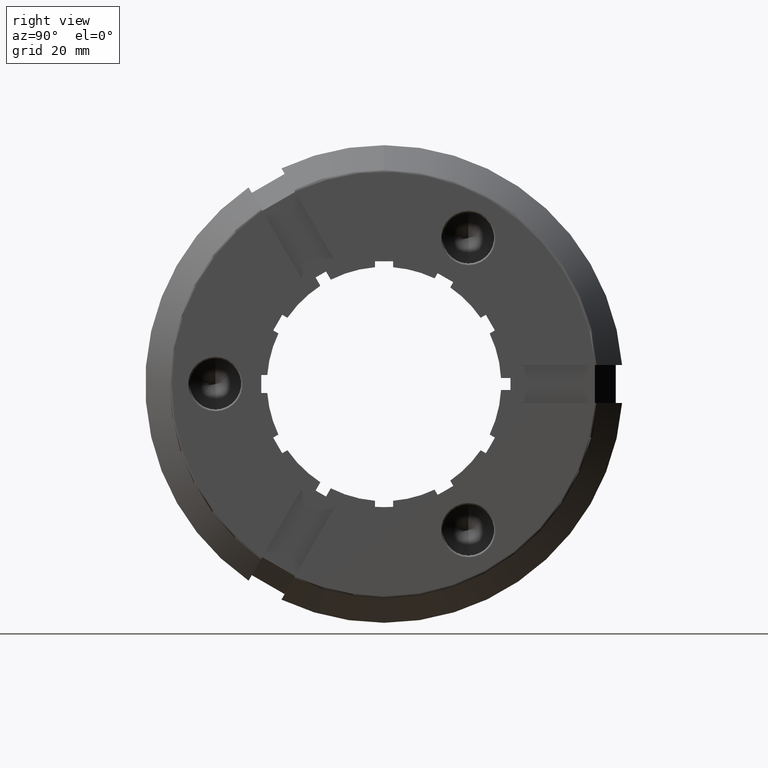
[diagram: clean part render]
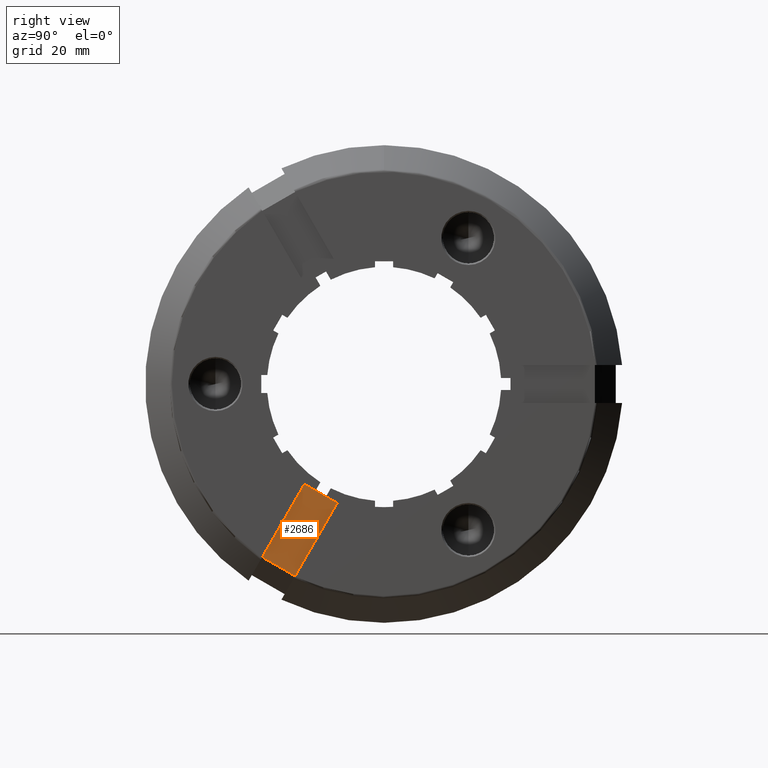
[diagram: same view with one face highlighted and labeled with its STEP entity id]
A machine part, right view. The second image highlights one B-rep face of the part: STEP entity #2686.
In plain terms, the highlighted planar face has unit normal (1, -0, -0).
Its self-contained STEP definition (entity closure, byte-faithful):
#143 = VERTEX_POINT ( 'NONE', #11821 ) ;
#159 = VERTEX_POINT ( 'NONE', #12457 ) ;
#350 = EDGE_LOOP ( 'NONE', ( #19426, #10072, #4352, #11635 ) ) ;
#1547 = PLANE ( 'NONE',  #18583 ) ;
#1912 = LINE ( 'NONE', #18557, #17241 ) ;
#2513 = VERTEX_POINT ( 'NONE', #18452 ) ;
#2686 = ADVANCED_FACE ( 'NONE', ( #17269 ), #1547, .T. ) ;
#3345 = VECTOR ( 'NONE', #14757, 1000.000000000000200 ) ;
#3620 = VECTOR ( 'NONE', #9028, 1000.000000000000000 ) ;
#4352 = ORIENTED_EDGE ( 'NONE', *, *, #9973, .T. ) ;
#9028 = DIRECTION ( 'NONE',  ( -3.252606517456512800E-016, -0.4999999999999920100, -0.8660254037844432600 ) ) ;
#9317 = VERTEX_POINT ( 'NONE', #14268 ) ;
#9435 = EDGE_CURVE ( 'NONE', #143, #159, #11745, .T. ) ;
#9602 = CARTESIAN_POINT ( 'NONE',  ( -1.000000000000000900, -13.22798002192083000, -16.61153347947333700 ) ) ;
#9818 = EDGE_CURVE ( 'NONE', #143, #9317, #1912, .T. ) ;
#9973 = EDGE_CURVE ( 'NONE', #159, #2513, #14825, .T. ) ;
#10072 = ORIENTED_EDGE ( 'NONE', *, *, #9435, .T. ) ;
#10167 = EDGE_CURVE ( 'NONE', #9317, #2513, #15513, .T. ) ;
#11635 = ORIENTED_EDGE ( 'NONE', *, *, #10167, .F. ) ;
#11745 = LINE ( 'NONE', #9602, #3620 ) ;
#11821 = CARTESIAN_POINT ( 'NONE',  ( -1.000000000000000900, -13.22798002192082800, -16.61153347947333400 ) ) ;
#12457 = CARTESIAN_POINT ( 'NONE',  ( -1.000000000000005600, -20.22798002192071800, -28.73588913245554000 ) ) ;
#14268 = CARTESIAN_POINT ( 'NONE',  ( -1.000000000000000900, -7.772019978078836800, -19.76153347947328600 ) ) ;
#14757 = DIRECTION ( 'NONE',  ( -3.252606517456512800E-016, -0.4999999999999919000, -0.8660254037844432600 ) ) ;
#14825 = LINE ( 'NONE', #17154, #19623 ) ;
#15080 = CARTESIAN_POINT ( 'NONE',  ( -1.000000000000000900, -7.772019978078838600, -19.76153347947329000 ) ) ;
#15513 = LINE ( 'NONE', #15080, #3345 ) ;
#17144 = DIRECTION ( 'NONE',  ( -3.252606517456512800E-016, -0.4999999999999919500, -0.8660254037844432600 ) ) ;
#17154 = CARTESIAN_POINT ( 'NONE',  ( -1.000000000000005600, -62.03104371249141000, -4.600879057753998000 ) ) ;
#17170 = DIRECTION ( 'NONE',  ( 0.0000000000000000000, 0.8660254037844432600, -0.4999999999999919500 ) ) ;
#17241 = VECTOR ( 'NONE', #18521, 1000.000000000000000 ) ;
#17269 = FACE_OUTER_BOUND ( 'NONE', #350, .T. ) ;
#17467 = DIRECTION ( 'NONE',  ( 1.000000000000000000, -1.626303258728230500E-016, -2.816839872632188100E-016 ) ) ;
#18376 = CARTESIAN_POINT ( 'NONE',  ( -1.000000000000000900, -55.03104371249152400, 7.523476595228208600 ) ) ;
#18452 = CARTESIAN_POINT ( 'NONE',  ( -1.000000000000005600, -14.77201997807872400, -31.88588913245549300 ) ) ;
#18521 = DIRECTION ( 'NONE',  ( 0.0000000000000000000, 0.8660254037844432600, -0.4999999999999919500 ) ) ;
#18557 = CARTESIAN_POINT ( 'NONE',  ( -1.000000000000000900, -55.03104371249152400, 7.523476595228208600 ) ) ;
#18583 = AXIS2_PLACEMENT_3D ( 'NONE', #18376, #17467, #17144 ) ;
#19426 = ORIENTED_EDGE ( 'NONE', *, *, #9818, .F. ) ;
#19623 = VECTOR ( 'NONE', #17170, 1000.000000000000000 ) ;